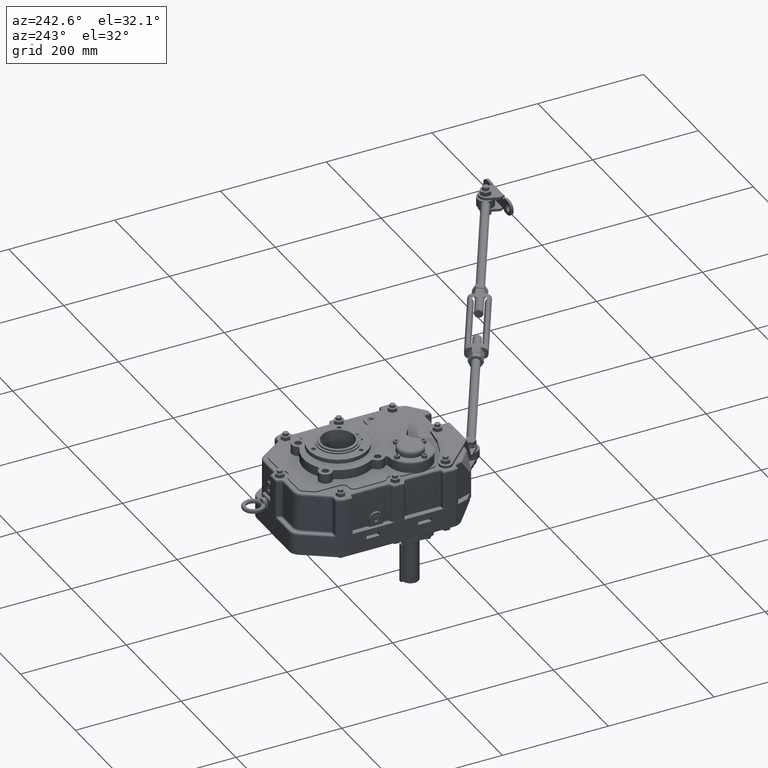
[diagram: clean part render]
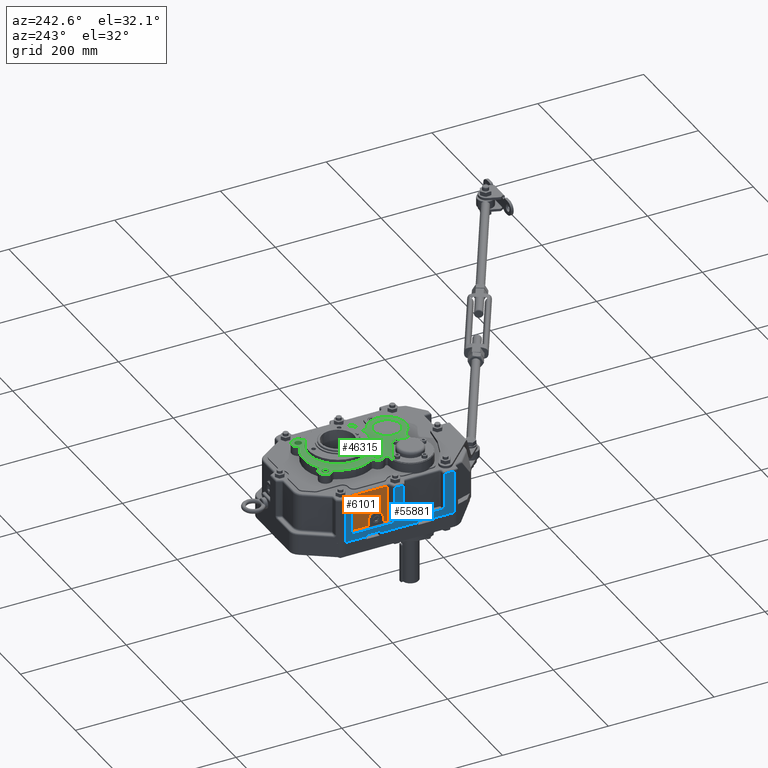
[diagram: same view with three faces highlighted in distinct colors, each labeled with its STEP entity id]
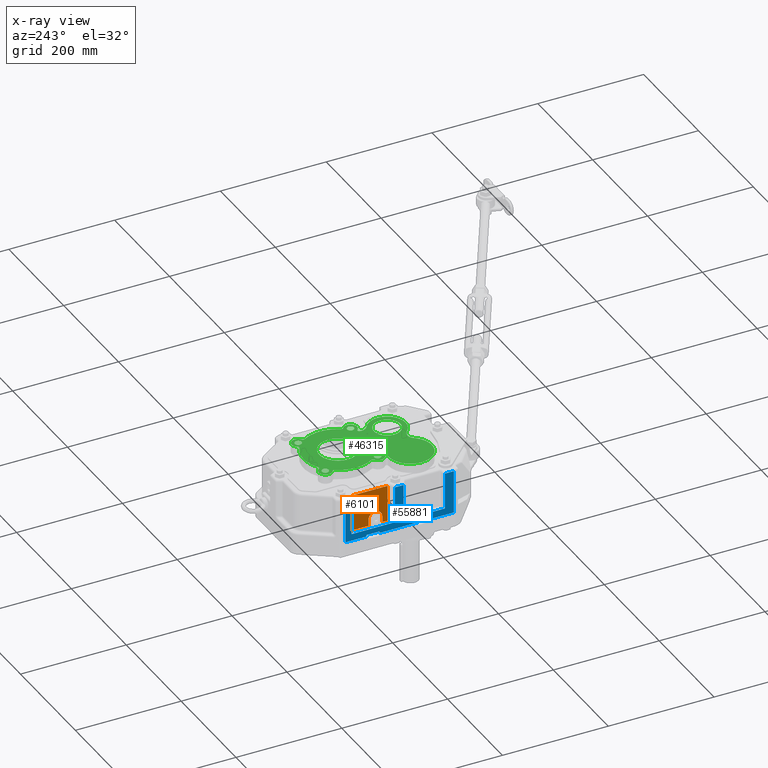
[diagram: x-ray of the same camera — body ghosted, the three highlighted faces saturated]
A machine part, auxiliary view with three faces highlighted in distinct colors.
The next image is the same camera in x-ray (body ghosted, the three faces saturated) — at least one of them is partly hidden behind the body in this view.
Their STEP definitions:

[orange] entity #6101 — the highlighted planar face has unit normal (-1, 0, 0).
#983 = EDGE_CURVE ( 'NONE', #34819, #47341, #10930, .T. ) ;
#1178 = DIRECTION ( 'NONE',  ( 1.000000000000000000, -1.682156097916904300E-016, -0.0000000000000000000 ) ) ;
#2093 = EDGE_CURVE ( 'NONE', #20894, #34819, #54463, .T. ) ;
#2431 = VECTOR ( 'NONE', #3463, 39.37007874015748100 ) ;
#2636 = EDGE_CURVE ( 'NONE', #17154, #53588, #4139, .T. ) ;
#3463 = DIRECTION ( 'NONE',  ( 1.682156097916904300E-016, 1.000000000000000000, -0.0000000000000000000 ) ) ;
#4139 = LINE ( 'NONE', #38166, #38982 ) ;
#5546 = EDGE_CURVE ( 'NONE', #47341, #17154, #16597, .T. ) ;
#6101 = ADVANCED_FACE ( 'NONE', ( #26676 ), #45057, .T. ) ;
#8141 = DIRECTION ( 'NONE',  ( 0.0000000000000000000, -1.445602896647340100E-016, 1.000000000000000000 ) ) ;
#8370 = VERTEX_POINT ( 'NONE', #48091 ) ;
#8974 = EDGE_CURVE ( 'NONE', #13146, #20894, #36937, .T. ) ;
#9086 = ORIENTED_EDGE ( 'NONE', *, *, #5546, .T. ) ;
#9384 = CARTESIAN_POINT ( 'NONE',  ( -4.232283464566929600, 4.842519685039370400, 0.5118110236220476700 ) ) ;
#9564 = VECTOR ( 'NONE', #8141, 39.37007874015748100 ) ;
#10156 = VECTOR ( 'NONE', #39787, 39.37007874015748100 ) ;
#10930 = LINE ( 'NONE', #34262, #9564 ) ;
#11837 = DIRECTION ( 'NONE',  ( 0.0000000000000000000, -0.0000000000000000000, 1.000000000000000000 ) ) ;
#12156 = LINE ( 'NONE', #20361, #45631 ) ;
#13146 = VERTEX_POINT ( 'NONE', #29854 ) ;
#16597 = CIRCLE ( 'NONE', #20434, 0.5118110236220472200 ) ;
#16979 = ORIENTED_EDGE ( 'NONE', *, *, #2636, .T. ) ;
#17125 = DIRECTION ( 'NONE',  ( -0.0000000000000000000, -0.0000000000000000000, -1.000000000000000000 ) ) ;
#17154 = VERTEX_POINT ( 'NONE', #33853 ) ;
#18808 = DIRECTION ( 'NONE',  ( -1.682156097916904300E-016, -1.000000000000000000, 0.0000000000000000000 ) ) ;
#20361 = CARTESIAN_POINT ( 'NONE',  ( -4.232283464566930500, -1.501807375876990100, 3.346456692913382500 ) ) ;
#20434 = AXIS2_PLACEMENT_3D ( 'NONE', #27254, #1178, #31676 ) ;
#20894 = VERTEX_POINT ( 'NONE', #49505 ) ;
#21304 = CARTESIAN_POINT ( 'NONE',  ( -4.232283464566930500, 1.141732283464567300, -12.48627875529069300 ) ) ;
#21782 = ORIENTED_EDGE ( 'NONE', *, *, #31863, .T. ) ;
#22435 = CARTESIAN_POINT ( 'NONE',  ( -4.232283464566929600, 4.842519685039370400, -12.48627875529069300 ) ) ;
#24381 = DIRECTION ( 'NONE',  ( -1.682156097916904300E-016, -1.000000000000000000, 0.0000000000000000000 ) ) ;
#24904 = DIRECTION ( 'NONE',  ( 0.0000000000000000000, 0.0000000000000000000, -1.000000000000000000 ) ) ;
#25134 = CARTESIAN_POINT ( 'NONE',  ( -4.232283464566930500, -0.07874015748031425200, 0.9842519685039379200 ) ) ;
#25248 = VECTOR ( 'NONE', #17125, 39.37007874015748100 ) ;
#25598 = LINE ( 'NONE', #42875, #2431 ) ;
#25748 = ORIENTED_EDGE ( 'NONE', *, *, #2093, .T. ) ;
#26213 = EDGE_CURVE ( 'NONE', #28170, #13146, #25598, .T. ) ;
#26676 = FACE_OUTER_BOUND ( 'NONE', #50878, .T. ) ;
#27254 = CARTESIAN_POINT ( 'NONE',  ( -4.232283464566930500, -0.5905511811023614900, 0.9842519685039372600 ) ) ;
#28170 = VERTEX_POINT ( 'NONE', #34611 ) ;
#29751 = VECTOR ( 'NONE', #24381, 39.37007874015748100 ) ;
#29854 = CARTESIAN_POINT ( 'NONE',  ( -4.232283464566930500, 1.141732283464567300, 3.228346456692914300 ) ) ;
#30314 = ORIENTED_EDGE ( 'NONE', *, *, #8974, .T. ) ;
#31248 = DIRECTION ( 'NONE',  ( -1.000000000000000000, 1.682156097916904300E-016, 0.0000000000000000000 ) ) ;
#31676 = DIRECTION ( 'NONE',  ( 0.0000000000000000000, 1.000000000000000000, 0.0000000000000000000 ) ) ;
#31863 = EDGE_CURVE ( 'NONE', #53588, #8370, #43677, .T. ) ;
#33627 = CARTESIAN_POINT ( 'NONE',  ( -4.232283464566930500, -1.102362204724408400, 0.5118110236220476700 ) ) ;
#33853 = CARTESIAN_POINT ( 'NONE',  ( -4.232283464566930500, -1.102362204724408800, 0.9842519685039372600 ) ) ;
#34262 = CARTESIAN_POINT ( 'NONE',  ( -4.232283464566930500, -0.07874015748031418200, 0.5118110236220476700 ) ) ;
#34611 = CARTESIAN_POINT ( 'NONE',  ( -4.232283464566930500, -1.501807375876990100, 3.228346456692913400 ) ) ;
#34786 = AXIS2_PLACEMENT_3D ( 'NONE', #22435, #31248, #18808 ) ;
#34819 = VERTEX_POINT ( 'NONE', #43951 ) ;
#36937 = LINE ( 'NONE', #21304, #25248 ) ;
#37180 = EDGE_CURVE ( 'NONE', #8370, #28170, #12156, .T. ) ;
#38166 = CARTESIAN_POINT ( 'NONE',  ( -4.232283464566930500, -1.102362204724408600, 0.9842519685039372600 ) ) ;
#38982 = VECTOR ( 'NONE', #24904, 39.37007874015748100 ) ;
#39787 = DIRECTION ( 'NONE',  ( -1.682156097916904300E-016, -1.000000000000000000, 0.0000000000000000000 ) ) ;
#42569 = ORIENTED_EDGE ( 'NONE', *, *, #26213, .T. ) ;
#42875 = CARTESIAN_POINT ( 'NONE',  ( -4.232283464566929600, 4.842519685039370400, 3.228346456692914300 ) ) ;
#43677 = LINE ( 'NONE', #9384, #10156 ) ;
#43951 = CARTESIAN_POINT ( 'NONE',  ( -4.232283464566930500, -0.07874015748031418200, 0.5118110236220476700 ) ) ;
#45057 = PLANE ( 'NONE',  #34786 ) ;
#45631 = VECTOR ( 'NONE', #11837, 39.37007874015748100 ) ;
#46710 = ORIENTED_EDGE ( 'NONE', *, *, #37180, .T. ) ;
#47341 = VERTEX_POINT ( 'NONE', #25134 ) ;
#47541 = ORIENTED_EDGE ( 'NONE', *, *, #983, .T. ) ;
#48091 = CARTESIAN_POINT ( 'NONE',  ( -4.232283464566930500, -1.501807375876990100, 0.5118110236220476700 ) ) ;
#49505 = CARTESIAN_POINT ( 'NONE',  ( -4.232283464566930500, 1.141732283464567300, 0.5118110236220476700 ) ) ;
#50635 = CARTESIAN_POINT ( 'NONE',  ( -4.232283464566929600, 4.842519685039370400, 0.5118110236220476700 ) ) ;
#50878 = EDGE_LOOP ( 'NONE', ( #46710, #42569, #30314, #25748, #47541, #9086, #16979, #21782 ) ) ;
#53588 = VERTEX_POINT ( 'NONE', #33627 ) ;
#54463 = LINE ( 'NONE', #50635, #29751 ) ;

[blue] entity #55881 — the highlighted planar face has unit normal (1, 0, 0).
#283 = ORIENTED_EDGE ( 'NONE', *, *, #12304, .T. ) ;
#599 = LINE ( 'NONE', #621, #12238 ) ;
#621 = CARTESIAN_POINT ( 'NONE',  ( -4.625984251968502800, -8.149606299212599900, 0.0000000000000000000 ) ) ;
#1198 = ORIENTED_EDGE ( 'NONE', *, *, #3523, .T. ) ;
#1514 = CARTESIAN_POINT ( 'NONE',  ( -4.625984251968502800, -8.149606299212599900, 0.0000000000000000000 ) ) ;
#1604 = VECTOR ( 'NONE', #36977, 39.37007874015748100 ) ;
#2523 = DIRECTION ( 'NONE',  ( -0.0000000000000000000, 0.0000000000000000000, 1.000000000000000000 ) ) ;
#3082 = VERTEX_POINT ( 'NONE', #18038 ) ;
#3523 = EDGE_CURVE ( 'NONE', #43847, #26045, #599, .T. ) ;
#3799 = VECTOR ( 'NONE', #11265, 39.37007874015748100 ) ;
#3815 = CARTESIAN_POINT ( 'NONE',  ( -4.625984251968504600, -5.551181102362205500, 0.5118110236220476700 ) ) ;
#4030 = VECTOR ( 'NONE', #40805, 39.37007874015748100 ) ;
#4270 = VERTEX_POINT ( 'NONE', #39543 ) ;
#4558 = VERTEX_POINT ( 'NONE', #45776 ) ;
#5518 = VECTOR ( 'NONE', #10306, 39.37007874015748100 ) ;
#5823 = VECTOR ( 'NONE', #2523, 39.37007874015748100 ) ;
#5827 = LINE ( 'NONE', #36318, #39325 ) ;
#6133 = ORIENTED_EDGE ( 'NONE', *, *, #52638, .T. ) ;
#6414 = ORIENTED_EDGE ( 'NONE', *, *, #43756, .T. ) ;
#6419 = DIRECTION ( 'NONE',  ( -0.0000000000000000000, 1.000000000000000000, -0.0000000000000000000 ) ) ;
#7085 = PLANE ( 'NONE',  #41323 ) ;
#7588 = VECTOR ( 'NONE', #38573, 39.37007874015748100 ) ;
#7768 = VERTEX_POINT ( 'NONE', #8249 ) ;
#8249 = CARTESIAN_POINT ( 'NONE',  ( -4.625984251968502800, 1.845104029052865100, 0.0000000000000000000 ) ) ;
#8310 = DIRECTION ( 'NONE',  ( 0.0000000000000000000, -0.0000000000000000000, -1.000000000000000000 ) ) ;
#8411 = CARTESIAN_POINT ( 'NONE',  ( -4.625984251968504600, -2.486058904810003700, 0.5118110236220476700 ) ) ;
#8928 = VERTEX_POINT ( 'NONE', #3815 ) ;
#8947 = DIRECTION ( 'NONE',  ( -0.0000000000000000000, -1.000000000000000000, -0.0000000000000000000 ) ) ;
#9060 = DIRECTION ( 'NONE',  ( -0.0000000000000000000, -1.000000000000000000, -0.0000000000000000000 ) ) ;
#9773 = CARTESIAN_POINT ( 'NONE',  ( -4.625984251968502800, -4.566929133858268500, -0.1968503937007868000 ) ) ;
#9912 = VECTOR ( 'NONE', #14136, 39.37007874015748100 ) ;
#10234 = CARTESIAN_POINT ( 'NONE',  ( -4.625984251968502800, 0.2755905511811015400, -0.1968503937007874400 ) ) ;
#10306 = DIRECTION ( 'NONE',  ( -0.0000000000000000000, -1.000000000000000000, -0.0000000000000000000 ) ) ;
#10512 = LINE ( 'NONE', #32481, #11888 ) ;
#11265 = DIRECTION ( 'NONE',  ( -0.0000000000000000000, 0.0000000000000000000, 1.000000000000000000 ) ) ;
#11317 = EDGE_CURVE ( 'NONE', #36715, #47489, #48114, .T. ) ;
#11629 = CARTESIAN_POINT ( 'NONE',  ( -4.625984251968504600, 4.842519685039370400, 0.5118110236220476700 ) ) ;
#11888 = VECTOR ( 'NONE', #6419, 39.37007874015748100 ) ;
#12238 = VECTOR ( 'NONE', #9060, 39.37007874015748100 ) ;
#12304 = EDGE_CURVE ( 'NONE', #4270, #55183, #36264, .T. ) ;
#12489 = CARTESIAN_POINT ( 'NONE',  ( -4.625984251968502800, -6.235621705654092600, 3.346456692913386100 ) ) ;
#12715 = CARTESIAN_POINT ( 'NONE',  ( -4.625984251968502800, 0.2755905511811015400, 0.1181102362204724100 ) ) ;
#13422 = DIRECTION ( 'NONE',  ( -0.0000000000000000000, 1.000000000000000000, -1.040834085586084400E-016 ) ) ;
#14136 = DIRECTION ( 'NONE',  ( 0.0000000000000000000, 0.0000000000000000000, 1.000000000000000000 ) ) ;
#14796 = VECTOR ( 'NONE', #49658, 39.37007874015748100 ) ;
#15356 = LINE ( 'NONE', #28385, #3799 ) ;
#15579 = LINE ( 'NONE', #10234, #4030 ) ;
#15813 = LINE ( 'NONE', #26235, #37711 ) ;
#16050 = CARTESIAN_POINT ( 'NONE',  ( -4.625984251968502800, 0.2755905511811015400, 0.0000000000000000000 ) ) ;
#16306 = CARTESIAN_POINT ( 'NONE',  ( -4.625984251968502800, -0.7086614173228356100, -0.1968503937007872700 ) ) ;
#16864 = CARTESIAN_POINT ( 'NONE',  ( -4.625984251968502800, -5.551181102362205500, 0.5118110236220476700 ) ) ;
#16981 = DIRECTION ( 'NONE',  ( 1.000000000000000000, 0.0000000000000000000, 0.0000000000000000000 ) ) ;
#18038 = CARTESIAN_POINT ( 'NONE',  ( -4.625984251968504600, -1.844649756607317900, 0.5118110236220476700 ) ) ;
#18726 = LINE ( 'NONE', #9773, #9912 ) ;
#19705 = ORIENTED_EDGE ( 'NONE', *, *, #25806, .F. ) ;
#20024 = CARTESIAN_POINT ( 'NONE',  ( -4.625984251968502800, -5.551181102362205500, 3.228346456692913400 ) ) ;
#20804 = EDGE_CURVE ( 'NONE', #43847, #4558, #18726, .T. ) ;
#20887 = EDGE_CURVE ( 'NONE', #47489, #7768, #5827, .T. ) ;
#21946 = CARTESIAN_POINT ( 'NONE',  ( -4.625984251968502800, -3.582677165354331900, 0.1181102362204729000 ) ) ;
#22213 = VECTOR ( 'NONE', #42617, 39.37007874015748100 ) ;
#22726 = EDGE_CURVE ( 'NONE', #42937, #3082, #36296, .T. ) ;
#23045 = DIRECTION ( 'NONE',  ( 0.0000000000000000000, -0.0000000000000000000, -1.000000000000000000 ) ) ;
#24180 = VERTEX_POINT ( 'NONE', #20024 ) ;
#24206 = VECTOR ( 'NONE', #13422, 39.37007874015748100 ) ;
#24365 = ORIENTED_EDGE ( 'NONE', *, *, #20887, .T. ) ;
#24795 = EDGE_CURVE ( 'NONE', #8928, #47445, #56617, .T. ) ;
#24901 = ORIENTED_EDGE ( 'NONE', *, *, #42959, .T. ) ;
#25042 = DIRECTION ( 'NONE',  ( 0.0000000000000000000, 0.0000000000000000000, 1.000000000000000000 ) ) ;
#25111 = VECTOR ( 'NONE', #25580, 39.37007874015748100 ) ;
#25310 = EDGE_LOOP ( 'NONE', ( #24901, #6414, #40149, #40719, #34031, #56687, #38156, #42670, #6133, #32799, #24365, #26965, #45982, #34497, #45299, #283, #37252, #19705, #45090, #1198 ) ) ;
#25428 = VERTEX_POINT ( 'NONE', #36778 ) ;
#25580 = DIRECTION ( 'NONE',  ( 0.0000000000000000000, 0.0000000000000000000, 1.000000000000000000 ) ) ;
#25585 = LINE ( 'NONE', #21946, #24206 ) ;
#25806 = EDGE_CURVE ( 'NONE', #4558, #49270, #25585, .T. ) ;
#26045 = VERTEX_POINT ( 'NONE', #37090 ) ;
#26235 = CARTESIAN_POINT ( 'NONE',  ( -4.625984251968502800, -8.149606299212599900, 0.0000000000000000000 ) ) ;
#26965 = ORIENTED_EDGE ( 'NONE', *, *, #39816, .T. ) ;
#27158 = CARTESIAN_POINT ( 'NONE',  ( -4.625984251968502800, 1.845104029052865300, 3.228346456692913400 ) ) ;
#28196 = VERTEX_POINT ( 'NONE', #39238 ) ;
#28322 = CARTESIAN_POINT ( 'NONE',  ( -4.625984251968502800, -3.582677165354331900, 0.1181102362204729000 ) ) ;
#28385 = CARTESIAN_POINT ( 'NONE',  ( -4.625984251968502800, 1.377952755905512000, 3.346456692913386100 ) ) ;
#28755 = FACE_OUTER_BOUND ( 'NONE', #25310, .T. ) ;
#30850 = EDGE_CURVE ( 'NONE', #49270, #55183, #42477, .T. ) ;
#31685 = CARTESIAN_POINT ( 'NONE',  ( -4.625984251968504600, 1.377952755905512000, 0.5118110236220476700 ) ) ;
#32481 = CARTESIAN_POINT ( 'NONE',  ( -4.625984251968502800, -1.844649756607317900, 3.228346456692913400 ) ) ;
#32799 = ORIENTED_EDGE ( 'NONE', *, *, #11317, .T. ) ;
#33026 = CARTESIAN_POINT ( 'NONE',  ( -4.625984251968502800, -2.486058904810003700, 3.346456692913386100 ) ) ;
#33265 = VECTOR ( 'NONE', #37789, 39.37007874015748100 ) ;
#33900 = LINE ( 'NONE', #16864, #55856 ) ;
#34031 = ORIENTED_EDGE ( 'NONE', *, *, #38231, .T. ) ;
#34360 = EDGE_CURVE ( 'NONE', #41575, #28196, #52630, .T. ) ;
#34378 = CARTESIAN_POINT ( 'NONE',  ( -4.625984251968502800, -8.149606299212599900, 3.346456692913386100 ) ) ;
#34497 = ORIENTED_EDGE ( 'NONE', *, *, #34360, .F. ) ;
#34906 = VECTOR ( 'NONE', #50458, 39.37007874015748100 ) ;
#35436 = LINE ( 'NONE', #12489, #25111 ) ;
#35754 = EDGE_CURVE ( 'NONE', #24180, #8928, #33900, .T. ) ;
#36264 = LINE ( 'NONE', #1514, #5518 ) ;
#36296 = LINE ( 'NONE', #46052, #34906 ) ;
#36318 = CARTESIAN_POINT ( 'NONE',  ( -4.625984251968502800, 1.845104029052865300, 0.0000000000000000000 ) ) ;
#36694 = LINE ( 'NONE', #45249, #14796 ) ;
#36715 = VERTEX_POINT ( 'NONE', #54475 ) ;
#36778 = CARTESIAN_POINT ( 'NONE',  ( -4.625984251968502800, -6.235621705654092600, 3.228346456692913400 ) ) ;
#36865 = VECTOR ( 'NONE', #25042, 39.37007874015748100 ) ;
#36977 = DIRECTION ( 'NONE',  ( -0.0000000000000000000, 1.000000000000000000, 0.0000000000000000000 ) ) ;
#37090 = CARTESIAN_POINT ( 'NONE',  ( -4.625984251968502800, -6.235621705654092600, 0.0000000000000000000 ) ) ;
#37252 = ORIENTED_EDGE ( 'NONE', *, *, #30850, .F. ) ;
#37711 = VECTOR ( 'NONE', #8947, 39.37007874015748100 ) ;
#37789 = DIRECTION ( 'NONE',  ( 0.0000000000000000000, 1.000000000000000000, 0.0000000000000000000 ) ) ;
#38156 = ORIENTED_EDGE ( 'NONE', *, *, #22726, .T. ) ;
#38231 = EDGE_CURVE ( 'NONE', #47445, #52081, #50940, .T. ) ;
#38357 = CARTESIAN_POINT ( 'NONE',  ( -4.625984251968504600, 4.842519685039370400, 0.5118110236220476700 ) ) ;
#38573 = DIRECTION ( 'NONE',  ( -0.0000000000000000000, -0.0000000000000000000, -1.000000000000000000 ) ) ;
#38685 = CARTESIAN_POINT ( 'NONE',  ( -4.625984251968502800, -0.7086614173228356100, 0.1181102362204725100 ) ) ;
#38874 = DIRECTION ( 'NONE',  ( -0.0000000000000000000, 1.000000000000000000, -1.040834085586084300E-016 ) ) ;
#39238 = CARTESIAN_POINT ( 'NONE',  ( -4.625984251968502800, 0.2755905511811015400, 0.1181102362204724100 ) ) ;
#39325 = VECTOR ( 'NONE', #23045, 39.37007874015748100 ) ;
#39543 = CARTESIAN_POINT ( 'NONE',  ( -4.625984251968502800, -0.7086614173228356100, 0.0000000000000000000 ) ) ;
#39816 = EDGE_CURVE ( 'NONE', #7768, #40517, #15813, .T. ) ;
#40149 = ORIENTED_EDGE ( 'NONE', *, *, #35754, .T. ) ;
#40517 = VERTEX_POINT ( 'NONE', #16050 ) ;
#40719 = ORIENTED_EDGE ( 'NONE', *, *, #24795, .T. ) ;
#40805 = DIRECTION ( 'NONE',  ( -0.0000000000000000000, -0.0000000000000000000, -1.000000000000000000 ) ) ;
#41254 = CARTESIAN_POINT ( 'NONE',  ( -4.625984251968502800, -4.566929133858268500, 0.0000000000000000000 ) ) ;
#41323 = AXIS2_PLACEMENT_3D ( 'NONE', #34378, #16981, #47589 ) ;
#41575 = VERTEX_POINT ( 'NONE', #38685 ) ;
#42477 = LINE ( 'NONE', #51798, #7588 ) ;
#42527 = CARTESIAN_POINT ( 'NONE',  ( -4.625984251968502800, -3.582677165354331900, 0.0000000000000000000 ) ) ;
#42617 = DIRECTION ( 'NONE',  ( 0.0000000000000000000, 1.000000000000000000, 0.0000000000000000000 ) ) ;
#42670 = ORIENTED_EDGE ( 'NONE', *, *, #43990, .T. ) ;
#42921 = CARTESIAN_POINT ( 'NONE',  ( -4.625984251968502800, -1.844649756607317900, 3.228346456692913400 ) ) ;
#42937 = VERTEX_POINT ( 'NONE', #42921 ) ;
#42959 = EDGE_CURVE ( 'NONE', #26045, #25428, #35436, .T. ) ;
#43123 = VERTEX_POINT ( 'NONE', #31685 ) ;
#43756 = EDGE_CURVE ( 'NONE', #25428, #24180, #36694, .T. ) ;
#43847 = VERTEX_POINT ( 'NONE', #41254 ) ;
#43990 = EDGE_CURVE ( 'NONE', #3082, #43123, #46900, .T. ) ;
#44922 = EDGE_CURVE ( 'NONE', #52081, #42937, #10512, .T. ) ;
#45090 = ORIENTED_EDGE ( 'NONE', *, *, #20804, .F. ) ;
#45249 = CARTESIAN_POINT ( 'NONE',  ( -4.625984251968502800, -5.551181102362205500, 3.228346456692913400 ) ) ;
#45299 = ORIENTED_EDGE ( 'NONE', *, *, #50633, .F. ) ;
#45776 = CARTESIAN_POINT ( 'NONE',  ( -4.625984251968502800, -4.566929133858268500, 0.1181102362204729900 ) ) ;
#45982 = ORIENTED_EDGE ( 'NONE', *, *, #46474, .F. ) ;
#46052 = CARTESIAN_POINT ( 'NONE',  ( -4.625984251968502800, -1.844649756607317900, 0.5118110236220476700 ) ) ;
#46474 = EDGE_CURVE ( 'NONE', #28196, #40517, #15579, .T. ) ;
#46900 = LINE ( 'NONE', #38357, #22213 ) ;
#47445 = VERTEX_POINT ( 'NONE', #8411 ) ;
#47489 = VERTEX_POINT ( 'NONE', #27158 ) ;
#47589 = DIRECTION ( 'NONE',  ( 0.0000000000000000000, 0.0000000000000000000, -1.000000000000000000 ) ) ;
#48114 = LINE ( 'NONE', #54428, #1604 ) ;
#49270 = VERTEX_POINT ( 'NONE', #28322 ) ;
#49658 = DIRECTION ( 'NONE',  ( -0.0000000000000000000, 1.000000000000000000, 0.0000000000000000000 ) ) ;
#50458 = DIRECTION ( 'NONE',  ( 0.0000000000000000000, -0.0000000000000000000, -1.000000000000000000 ) ) ;
#50633 = EDGE_CURVE ( 'NONE', #4270, #41575, #51275, .T. ) ;
#50940 = LINE ( 'NONE', #33026, #5823 ) ;
#51275 = LINE ( 'NONE', #16306, #36865 ) ;
#51798 = CARTESIAN_POINT ( 'NONE',  ( -4.625984251968502800, -3.582677165354331900, -0.1968503937007869700 ) ) ;
#52081 = VERTEX_POINT ( 'NONE', #55163 ) ;
#52630 = LINE ( 'NONE', #12715, #53984 ) ;
#52638 = EDGE_CURVE ( 'NONE', #43123, #36715, #15356, .T. ) ;
#53984 = VECTOR ( 'NONE', #38874, 39.37007874015748100 ) ;
#54428 = CARTESIAN_POINT ( 'NONE',  ( -4.625984251968502800, 1.845104029052865100, 3.228346456692913400 ) ) ;
#54475 = CARTESIAN_POINT ( 'NONE',  ( -4.625984251968502800, 1.377952755905512000, 3.228346456692913400 ) ) ;
#55163 = CARTESIAN_POINT ( 'NONE',  ( -4.625984251968502800, -2.486058904810003700, 3.228346456692913400 ) ) ;
#55183 = VERTEX_POINT ( 'NONE', #42527 ) ;
#55856 = VECTOR ( 'NONE', #8310, 39.37007874015748100 ) ;
#55881 = ADVANCED_FACE ( 'NONE', ( #28755 ), #7085, .F. ) ;
#56617 = LINE ( 'NONE', #11629, #33265 ) ;
#56687 = ORIENTED_EDGE ( 'NONE', *, *, #44922, .T. ) ;

[green] entity #46315 — the highlighted planar face has unit normal (0, 0, 1).
#30 = EDGE_LOOP ( 'NONE', ( #55646, #9388 ) ) ;
#44 = EDGE_CURVE ( 'NONE', #56375, #50625, #4887, .T. ) ;
#134 = DIRECTION ( 'NONE',  ( 1.000000000000000000, 0.0000000000000000000, 0.0000000000000000000 ) ) ;
#604 = EDGE_CURVE ( 'NONE', #42088, #33923, #34853, .T. ) ;
#654 = CIRCLE ( 'NONE', #36130, 0.2500000000000000600 ) ;
#732 = DIRECTION ( 'NONE',  ( 1.000000000000000000, 0.0000000000000000000, 0.0000000000000000000 ) ) ;
#1016 = CARTESIAN_POINT ( 'NONE',  ( 1.527938016229698500, 2.203927131812397600, 4.133858267716536100 ) ) ;
#1069 = CIRCLE ( 'NONE', #7786, 1.614173228346456700 ) ;
#1163 = DIRECTION ( 'NONE',  ( 1.000000000000000000, 0.0000000000000000000, 0.0000000000000000000 ) ) ;
#1188 = DIRECTION ( 'NONE',  ( 1.000000000000000000, 0.0000000000000000000, 0.0000000000000000000 ) ) ;
#1345 = CARTESIAN_POINT ( 'NONE',  ( -0.1509532160027461900, -5.031851016169216700, 4.133858267716536100 ) ) ;
#1794 = VERTEX_POINT ( 'NONE', #4322 ) ;
#1938 = VERTEX_POINT ( 'NONE', #1016 ) ;
#2167 = DIRECTION ( 'NONE',  ( 1.000000000000000000, 0.0000000000000000000, 0.0000000000000000000 ) ) ;
#2303 = DIRECTION ( 'NONE',  ( 1.000000000000000000, 0.0000000000000000000, 0.0000000000000000000 ) ) ;
#2387 = DIRECTION ( 'NONE',  ( 1.000000000000000000, 0.0000000000000000000, 0.0000000000000000000 ) ) ;
#2516 = CARTESIAN_POINT ( 'NONE',  ( 0.0000000000000000000, 0.0000000000000000000, 4.133858267716536100 ) ) ;
#2666 = VERTEX_POINT ( 'NONE', #25091 ) ;
#2800 = CARTESIAN_POINT ( 'NONE',  ( 1.496383692640245000, -2.358329758944051100, 4.133858267716536100 ) ) ;
#2868 = DIRECTION ( 'NONE',  ( 1.000000000000000000, -4.625929269271481400E-015, 0.0000000000000000000 ) ) ;
#2883 = AXIS2_PLACEMENT_3D ( 'NONE', #32024, #5958, #36509 ) ;
#2937 = VERTEX_POINT ( 'NONE', #39328 ) ;
#3679 = VERTEX_POINT ( 'NONE', #18883 ) ;
#3713 = EDGE_CURVE ( 'NONE', #10793, #50615, #40922, .T. ) ;
#3745 = EDGE_CURVE ( 'NONE', #50758, #28850, #6063, .T. ) ;
#4022 = AXIS2_PLACEMENT_3D ( 'NONE', #22674, #53371, #27042 ) ;
#4063 = VERTEX_POINT ( 'NONE', #55434 ) ;
#4141 = EDGE_CURVE ( 'NONE', #49650, #21840, #51814, .T. ) ;
#4217 = EDGE_CURVE ( 'NONE', #22330, #45306, #5275, .T. ) ;
#4322 = CARTESIAN_POINT ( 'NONE',  ( -2.203927131812397600, 1.527938016229698900, 4.133858267716536100 ) ) ;
#4357 = PLANE ( 'NONE',  #9738 ) ;
#4572 = CARTESIAN_POINT ( 'NONE',  ( 2.147066733056270900, 1.426950465954196300, 4.133858267716536100 ) ) ;
#4582 = CARTESIAN_POINT ( 'NONE',  ( -1.948719475710957800, -1.948719475710958300, 4.133858267716536100 ) ) ;
#4586 = EDGE_CURVE ( 'NONE', #28850, #29874, #35300, .T. ) ;
#4706 = CARTESIAN_POINT ( 'NONE',  ( 0.0000000000000000000, 0.0000000000000000000, 4.133858267716536100 ) ) ;
#4887 = CIRCLE ( 'NONE', #4022, 2.559055118110236600 ) ;
#5017 = EDGE_CURVE ( 'NONE', #4063, #10793, #10590, .T. ) ;
#5040 = AXIS2_PLACEMENT_3D ( 'NONE', #52027, #25727, #56408 ) ;
#5051 = VERTEX_POINT ( 'NONE', #41919 ) ;
#5275 = CIRCLE ( 'NONE', #54853, 0.4921259842519684100 ) ;
#5533 = CARTESIAN_POINT ( 'NONE',  ( 2.265176969276743600, 1.426950465954196300, 4.133858267716536100 ) ) ;
#5625 = CARTESIAN_POINT ( 'NONE',  ( 1.426950465954196300, 2.265176969276743600, 4.133858267716536100 ) ) ;
#5707 = EDGE_CURVE ( 'NONE', #31753, #10226, #49408, .T. ) ;
#5771 = EDGE_CURVE ( 'NONE', #30540, #37333, #7711, .T. ) ;
#5958 = DIRECTION ( 'NONE',  ( 0.0000000000000000000, 0.0000000000000000000, 1.000000000000000000 ) ) ;
#6063 = CIRCLE ( 'NONE', #7200, 0.5905511811023621500 ) ;
#6068 = CARTESIAN_POINT ( 'NONE',  ( 1.948719475710957800, -1.948719475710958300, 4.133858267716536100 ) ) ;
#6084 = VERTEX_POINT ( 'NONE', #13703 ) ;
#6218 = AXIS2_PLACEMENT_3D ( 'NONE', #50302, #24040, #54749 ) ;
#6301 = CARTESIAN_POINT ( 'NONE',  ( -2.147066733056271400, 1.426950465954196100, 4.133858267716536100 ) ) ;
#6352 = VERTEX_POINT ( 'NONE', #18222 ) ;
#6552 = AXIS2_PLACEMENT_3D ( 'NONE', #2800, #33291, #7202 ) ;
#6558 = CARTESIAN_POINT ( 'NONE',  ( 1.955694570897049900, -2.468937007874016000, 4.133858267716536100 ) ) ;
#6603 = AXIS2_PLACEMENT_3D ( 'NONE', #49617, #23324, #54050 ) ;
#6775 = ORIENTED_EDGE ( 'NONE', *, *, #5017, .T. ) ;
#6781 = CARTESIAN_POINT ( 'NONE',  ( 1.387795275590551400, 0.0000000000000000000, 4.133858267716536100 ) ) ;
#6926 = DIRECTION ( 'NONE',  ( 1.000000000000000000, 0.0000000000000000000, 0.0000000000000000000 ) ) ;
#7040 = CARTESIAN_POINT ( 'NONE',  ( -2.559055118110236600, 0.0000000000000000000, 4.133858267716536100 ) ) ;
#7198 = VERTEX_POINT ( 'NONE', #51865 ) ;
#7200 = AXIS2_PLACEMENT_3D ( 'NONE', #6558, #37096, #10925 ) ;
#7202 = DIRECTION ( 'NONE',  ( 1.000000000000000000, -2.312964634635740700E-015, 0.0000000000000000000 ) ) ;
#7225 = CARTESIAN_POINT ( 'NONE',  ( -1.948719475710957800, -1.948719475710958300, 4.133858267716536100 ) ) ;
#7280 = CARTESIAN_POINT ( 'NONE',  ( 2.265176969276743600, 1.426950465954196300, 4.133858267716536100 ) ) ;
#7439 = VECTOR ( 'NONE', #19264, 39.37007874015748900 ) ;
#7468 = ORIENTED_EDGE ( 'NONE', *, *, #5771, .T. ) ;
#7711 = CIRCLE ( 'NONE', #39949, 0.1181102362204725500 ) ;
#7712 = AXIS2_PLACEMENT_3D ( 'NONE', #54707, #28405, #2303 ) ;
#7786 = AXIS2_PLACEMENT_3D ( 'NONE', #52537, #26220, #134 ) ;
#8797 = ORIENTED_EDGE ( 'NONE', *, *, #37118, .F. ) ;
#8858 = AXIS2_PLACEMENT_3D ( 'NONE', #51563, #25244, #55928 ) ;
#8932 = CARTESIAN_POINT ( 'NONE',  ( -2.265176969276743600, 1.426950465954196100, 4.133858267716536100 ) ) ;
#8945 = DIRECTION ( 'NONE',  ( 0.7547095802227760100, -0.6560590289905026100, 0.0000000000000000000 ) ) ;
#8973 = DIRECTION ( 'NONE',  ( 1.000000000000000000, 0.0000000000000000000, 0.0000000000000000000 ) ) ;
#9043 = CARTESIAN_POINT ( 'NONE',  ( 2.165242691220416100, -1.363996768926805500, 4.133858267716536100 ) ) ;
#9076 = EDGE_CURVE ( 'NONE', #38788, #34481, #47159, .T. ) ;
#9105 = AXIS2_PLACEMENT_3D ( 'NONE', #37642, #11473, #42068 ) ;
#9106 = DIRECTION ( 'NONE',  ( 1.000000000000000000, 0.0000000000000000000, 0.0000000000000000000 ) ) ;
#9388 = ORIENTED_EDGE ( 'NONE', *, *, #33763, .F. ) ;
#9738 = AXIS2_PLACEMENT_3D ( 'NONE', #30443, #13120, #43707 ) ;
#9913 = DIRECTION ( 'NONE',  ( 1.000000000000000000, 2.312964634635740700E-015, 0.0000000000000000000 ) ) ;
#9994 = DIRECTION ( 'NONE',  ( 1.000000000000000000, 2.312964634635740700E-015, 0.0000000000000000000 ) ) ;
#10029 = EDGE_CURVE ( 'NONE', #55945, #4063, #29108, .T. ) ;
#10207 = FACE_BOUND ( 'NONE', #17451, .T. ) ;
#10226 = VERTEX_POINT ( 'NONE', #41352 ) ;
#10433 = DIRECTION ( 'NONE',  ( 1.000000000000000000, 0.0000000000000000000, 0.0000000000000000000 ) ) ;
#10590 = CIRCLE ( 'NONE', #6218, 0.5905511811023621500 ) ;
#10793 = VERTEX_POINT ( 'NONE', #1345 ) ;
#10801 = LINE ( 'NONE', #30649, #32599 ) ;
#10925 = DIRECTION ( 'NONE',  ( 1.000000000000000000, 0.0000000000000000000, 0.0000000000000000000 ) ) ;
#10945 = CARTESIAN_POINT ( 'NONE',  ( 1.363996768926805100, 2.165242691220416100, 4.133858267716536100 ) ) ;
#11029 = CIRCLE ( 'NONE', #8858, 2.559055118110236600 ) ;
#11473 = DIRECTION ( 'NONE',  ( -0.0000000000000000000, -0.0000000000000000000, -1.000000000000000000 ) ) ;
#11607 = ORIENTED_EDGE ( 'NONE', *, *, #30184, .F. ) ;
#11617 = DIRECTION ( 'NONE',  ( 1.000000000000000000, 0.0000000000000000000, 0.0000000000000000000 ) ) ;
#11675 = DIRECTION ( 'NONE',  ( 1.000000000000000000, -2.312964634635740700E-015, 0.0000000000000000000 ) ) ;
#12197 = ORIENTED_EDGE ( 'NONE', *, *, #13404, .T. ) ;
#12461 = ORIENTED_EDGE ( 'NONE', *, *, #50081, .F. ) ;
#13120 = DIRECTION ( 'NONE',  ( 0.0000000000000000000, 0.0000000000000000000, 1.000000000000000000 ) ) ;
#13163 = AXIS2_PLACEMENT_3D ( 'NONE', #22719, #53411, #27086 ) ;
#13300 = DIRECTION ( 'NONE',  ( 1.000000000000000000, -4.625929269271481400E-015, 0.0000000000000000000 ) ) ;
#13404 = EDGE_CURVE ( 'NONE', #1938, #38204, #51946, .T. ) ;
#13581 = CIRCLE ( 'NONE', #5040, 1.377952755905512000 ) ;
#13703 = CARTESIAN_POINT ( 'NONE',  ( -2.235146074997497400, -2.351805955091798200, 4.133858267716536100 ) ) ;
#13798 = ORIENTED_EDGE ( 'NONE', *, *, #40380, .T. ) ;
#13808 = ORIENTED_EDGE ( 'NONE', *, *, #53395, .T. ) ;
#14637 = ORIENTED_EDGE ( 'NONE', *, *, #49345, .T. ) ;
#14936 = DIRECTION ( 'NONE',  ( 0.0000000000000000000, 0.0000000000000000000, 1.000000000000000000 ) ) ;
#15064 = ORIENTED_EDGE ( 'NONE', *, *, #53883, .F. ) ;
#15299 = CARTESIAN_POINT ( 'NONE',  ( 1.698719475710957600, 1.948719475710957800, 4.133858267716536100 ) ) ;
#15870 = CIRCLE ( 'NONE', #35965, 1.614173228346456700 ) ;
#15894 = DIRECTION ( 'NONE',  ( 0.0000000000000000000, 0.0000000000000000000, 1.000000000000000000 ) ) ;
#16708 = EDGE_CURVE ( 'NONE', #45306, #6084, #10801, .T. ) ;
#16721 = ORIENTED_EDGE ( 'NONE', *, *, #38824, .T. ) ;
#16866 = CARTESIAN_POINT ( 'NONE',  ( -1.131584544875511100, -5.245893664353339100, 4.133858267716536100 ) ) ;
#16909 = CARTESIAN_POINT ( 'NONE',  ( -2.165242691220416600, 1.363996768926804700, 4.133858267716536100 ) ) ;
#16957 = AXIS2_PLACEMENT_3D ( 'NONE', #24609, #55287, #29014 ) ;
#17167 = VERTEX_POINT ( 'NONE', #51331 ) ;
#17235 = CIRCLE ( 'NONE', #13163, 1.387795275590551400 ) ;
#17451 = EDGE_LOOP ( 'NONE', ( #45404, #40721 ) ) ;
#17711 = CARTESIAN_POINT ( 'NONE',  ( 1.948719475710957800, 1.948719475710957800, 4.133858267716536100 ) ) ;
#17790 = AXIS2_PLACEMENT_3D ( 'NONE', #50867, #24591, #55271 ) ;
#18222 = CARTESIAN_POINT ( 'NONE',  ( -1.698719475710958300, 1.948719475710957400, 4.133858267716536100 ) ) ;
#18468 = CIRCLE ( 'NONE', #19308, 0.1181102362204725500 ) ;
#18530 = ORIENTED_EDGE ( 'NONE', *, *, #55840, .T. ) ;
#18883 = CARTESIAN_POINT ( 'NONE',  ( -2.198719475710957800, -1.948719475710958300, 4.133858267716536100 ) ) ;
#19264 = DIRECTION ( 'NONE',  ( 0.7472622575649244800, -0.6645292457213394200, 0.0000000000000000000 ) ) ;
#19308 = AXIS2_PLACEMENT_3D ( 'NONE', #8932, #39499, #13300 ) ;
#19489 = ORIENTED_EDGE ( 'NONE', *, *, #42410, .T. ) ;
#19827 = DIRECTION ( 'NONE',  ( 0.0000000000000000000, 0.0000000000000000000, 1.000000000000000000 ) ) ;
#19941 = CIRCLE ( 'NONE', #53083, 0.4921259842519692400 ) ;
#19989 = CARTESIAN_POINT ( 'NONE',  ( -1.948719475710958300, 1.948719475710957400, 4.133858267716536100 ) ) ;
#20326 = CARTESIAN_POINT ( 'NONE',  ( 1.948719475710957800, -1.948719475710958300, 4.133858267716536100 ) ) ;
#20383 = FACE_OUTER_BOUND ( 'NONE', #39517, .T. ) ;
#20600 = LINE ( 'NONE', #23432, #48675 ) ;
#20913 = AXIS2_PLACEMENT_3D ( 'NONE', #51787, #25491, #56186 ) ;
#21239 = CARTESIAN_POINT ( 'NONE',  ( 1.647962577580691200, -2.972972440944881900, 4.133858267716536100 ) ) ;
#21516 = CARTESIAN_POINT ( 'NONE',  ( 1.948719475710957800, 1.948719475710957800, 4.133858267716536100 ) ) ;
#21555 = EDGE_CURVE ( 'NONE', #17167, #3679, #31667, .T. ) ;
#21840 = VERTEX_POINT ( 'NONE', #39498 ) ;
#21957 = CIRCLE ( 'NONE', #46061, 0.1181102362204725500 ) ;
#22088 = DIRECTION ( 'NONE',  ( 1.000000000000000000, 0.0000000000000000000, 0.0000000000000000000 ) ) ;
#22091 = EDGE_CURVE ( 'NONE', #2937, #31718, #15870, .T. ) ;
#22253 = AXIS2_PLACEMENT_3D ( 'NONE', #4706, #35242, #9106 ) ;
#22330 = VERTEX_POINT ( 'NONE', #39618 ) ;
#22674 = CARTESIAN_POINT ( 'NONE',  ( 0.0000000000000000000, 0.0000000000000000000, 4.133858267716536100 ) ) ;
#22719 = CARTESIAN_POINT ( 'NONE',  ( 0.0000000000000000000, 0.0000000000000000000, 4.133858267716536100 ) ) ;
#22865 = ORIENTED_EDGE ( 'NONE', *, *, #21555, .F. ) ;
#23022 = EDGE_LOOP ( 'NONE', ( #47946, #8797 ) ) ;
#23085 = FACE_BOUND ( 'NONE', #30, .T. ) ;
#23324 = DIRECTION ( 'NONE',  ( -0.0000000000000000000, -0.0000000000000000000, -1.000000000000000000 ) ) ;
#23430 = ORIENTED_EDGE ( 'NONE', *, *, #27129, .T. ) ;
#23432 = CARTESIAN_POINT ( 'NONE',  ( -1.996733185438086800, -2.559055118110235700, 4.133858267716536100 ) ) ;
#23663 = CIRCLE ( 'NONE', #25590, 0.2500000000000000600 ) ;
#23779 = ORIENTED_EDGE ( 'NONE', *, *, #30255, .T. ) ;
#24040 = DIRECTION ( 'NONE',  ( -0.0000000000000000000, -0.0000000000000000000, -1.000000000000000000 ) ) ;
#24226 = EDGE_CURVE ( 'NONE', #21840, #49650, #45072, .T. ) ;
#24334 = EDGE_CURVE ( 'NONE', #50615, #50758, #13581, .T. ) ;
#24366 = DIRECTION ( 'NONE',  ( 1.000000000000000000, 0.0000000000000000000, 0.0000000000000000000 ) ) ;
#24591 = DIRECTION ( 'NONE',  ( 0.0000000000000000000, 0.0000000000000000000, 1.000000000000000000 ) ) ;
#24609 = CARTESIAN_POINT ( 'NONE',  ( -2.312633361886139700, -2.440944881889763900, 4.133858267716536100 ) ) ;
#24651 = CARTESIAN_POINT ( 'NONE',  ( -2.198719475710958300, 1.948719475710957400, 4.133858267716536100 ) ) ;
#24705 = DIRECTION ( 'NONE',  ( 1.000000000000000000, 0.0000000000000000000, 0.0000000000000000000 ) ) ;
#24776 = CIRCLE ( 'NONE', #32330, 0.4921259842519686800 ) ;
#25026 = ORIENTED_EDGE ( 'NONE', *, *, #55980, .T. ) ;
#25091 = CARTESIAN_POINT ( 'NONE',  ( 2.203927131812397200, -1.527938016229699600, 4.133858267716536100 ) ) ;
#25244 = DIRECTION ( 'NONE',  ( 0.0000000000000000000, 0.0000000000000000000, 1.000000000000000000 ) ) ;
#25491 = DIRECTION ( 'NONE',  ( 0.0000000000000000000, 0.0000000000000000000, 1.000000000000000000 ) ) ;
#25590 = AXIS2_PLACEMENT_3D ( 'NONE', #19989, #50619, #24366 ) ;
#25727 = DIRECTION ( 'NONE',  ( 0.0000000000000000000, 0.0000000000000000000, 1.000000000000000000 ) ) ;
#25890 = DIRECTION ( 'NONE',  ( 1.000000000000000000, 0.0000000000000000000, 0.0000000000000000000 ) ) ;
#26220 = DIRECTION ( 'NONE',  ( 0.0000000000000000000, 0.0000000000000000000, 1.000000000000000000 ) ) ;
#26822 = DIRECTION ( 'NONE',  ( -0.0000000000000000000, -0.0000000000000000000, -1.000000000000000000 ) ) ;
#27042 = DIRECTION ( 'NONE',  ( 1.000000000000000000, 0.0000000000000000000, 0.0000000000000000000 ) ) ;
#27086 = DIRECTION ( 'NONE',  ( 1.000000000000000000, 0.0000000000000000000, 0.0000000000000000000 ) ) ;
#27129 = EDGE_CURVE ( 'NONE', #29874, #53581, #24776, .T. ) ;
#27240 = DIRECTION ( 'NONE',  ( 0.0000000000000000000, 0.0000000000000000000, 1.000000000000000000 ) ) ;
#27267 = DIRECTION ( 'NONE',  ( 0.0000000000000000000, 0.0000000000000000000, 1.000000000000000000 ) ) ;
#27445 = ORIENTED_EDGE ( 'NONE', *, *, #4217, .T. ) ;
#27635 = ORIENTED_EDGE ( 'NONE', *, *, #3745, .T. ) ;
#28225 = CARTESIAN_POINT ( 'NONE',  ( 1.698719475710957600, -1.948719475710958300, 4.133858267716536100 ) ) ;
#28251 = VERTEX_POINT ( 'NONE', #9043 ) ;
#28274 = DIRECTION ( 'NONE',  ( 0.0000000000000000000, 0.0000000000000000000, 1.000000000000000000 ) ) ;
#28405 = DIRECTION ( 'NONE',  ( 0.0000000000000000000, 0.0000000000000000000, 1.000000000000000000 ) ) ;
#28494 = DIRECTION ( 'NONE',  ( 0.0000000000000000000, 0.0000000000000000000, 1.000000000000000000 ) ) ;
#28504 = CIRCLE ( 'NONE', #22253, 2.559055118110236600 ) ;
#28511 = CARTESIAN_POINT ( 'NONE',  ( -1.527938016229699800, 2.203927131812397200, 4.133858267716536100 ) ) ;
#28639 = ORIENTED_EDGE ( 'NONE', *, *, #30348, .T. ) ;
#28762 = ORIENTED_EDGE ( 'NONE', *, *, #56608, .T. ) ;
#28816 = EDGE_CURVE ( 'NONE', #36083, #52042, #44143, .T. ) ;
#28850 = VERTEX_POINT ( 'NONE', #31431 ) ;
#28904 = ORIENTED_EDGE ( 'NONE', *, *, #604, .T. ) ;
#28967 = DIRECTION ( 'NONE',  ( -0.0000000000000000000, -0.0000000000000000000, -1.000000000000000000 ) ) ;
#29014 = DIRECTION ( 'NONE',  ( 1.000000000000000000, 0.0000000000000000000, 0.0000000000000000000 ) ) ;
#29108 = LINE ( 'NONE', #16866, #51075 ) ;
#29268 = CARTESIAN_POINT ( 'NONE',  ( 0.01423135432098979900, -5.178747205305998400, 4.133858267716536100 ) ) ;
#29586 = CARTESIAN_POINT ( 'NONE',  ( 2.165242691220416100, 1.363996768926805100, 4.133858267716536100 ) ) ;
#29599 = CARTESIAN_POINT ( 'NONE',  ( -3.951968503937008000, -4.173228346456692600, 4.133858267716536100 ) ) ;
#29669 = VERTEX_POINT ( 'NONE', #24651 ) ;
#29874 = VERTEX_POINT ( 'NONE', #43649 ) ;
#30184 = EDGE_CURVE ( 'NONE', #5051, #46659, #17235, .T. ) ;
#30255 = EDGE_CURVE ( 'NONE', #54328, #2937, #20600, .T. ) ;
#30348 = EDGE_CURVE ( 'NONE', #38204, #36083, #52124, .T. ) ;
#30443 = CARTESIAN_POINT ( 'NONE',  ( 0.0000000000000000000, 0.0000000000000000000, 4.133858267716536100 ) ) ;
#30475 = ORIENTED_EDGE ( 'NONE', *, *, #28816, .T. ) ;
#30540 = VERTEX_POINT ( 'NONE', #29586 ) ;
#30649 = CARTESIAN_POINT ( 'NONE',  ( -2.271583171080300300, -2.320131670702482400, 4.133858267716536100 ) ) ;
#31431 = CARTESIAN_POINT ( 'NONE',  ( 1.381555973076043400, -2.330677946711559900, 4.133858267716536100 ) ) ;
#31667 = CIRCLE ( 'NONE', #48044, 0.2500000000000000600 ) ;
#31718 = VERTEX_POINT ( 'NONE', #29599 ) ;
#31722 = ORIENTED_EDGE ( 'NONE', *, *, #38523, .T. ) ;
#31753 = VERTEX_POINT ( 'NONE', #52040 ) ;
#31976 = FACE_BOUND ( 'NONE', #40701, .T. ) ;
#32024 = CARTESIAN_POINT ( 'NONE',  ( 0.9299212598425203900, -4.149055118110236000, 4.133858267716536100 ) ) ;
#32330 = AXIS2_PLACEMENT_3D ( 'NONE', #54793, #28494, #2387 ) ;
#32599 = VECTOR ( 'NONE', #8945, 39.37007874015748900 ) ;
#32883 = AXIS2_PLACEMENT_3D ( 'NONE', #54575, #28274, #2167 ) ;
#32969 = CIRCLE ( 'NONE', #38245, 0.1181102362204725500 ) ;
#33016 = DIRECTION ( 'NONE',  ( 0.0000000000000000000, 0.0000000000000000000, 1.000000000000000000 ) ) ;
#33291 = DIRECTION ( 'NONE',  ( -0.0000000000000000000, -0.0000000000000000000, -1.000000000000000000 ) ) ;
#33763 = EDGE_CURVE ( 'NONE', #34481, #38788, #51291, .T. ) ;
#33923 = VERTEX_POINT ( 'NONE', #16909 ) ;
#34311 = AXIS2_PLACEMENT_3D ( 'NONE', #53139, #26822, #732 ) ;
#34481 = VERTEX_POINT ( 'NONE', #28225 ) ;
#34853 = CIRCLE ( 'NONE', #6603, 0.1181102362204725500 ) ;
#34881 = ORIENTED_EDGE ( 'NONE', *, *, #3713, .T. ) ;
#35102 = DIRECTION ( 'NONE',  ( 0.0000000000000000000, 0.0000000000000000000, 1.000000000000000000 ) ) ;
#35242 = DIRECTION ( 'NONE',  ( 0.0000000000000000000, 0.0000000000000000000, 1.000000000000000000 ) ) ;
#35300 = CIRCLE ( 'NONE', #6552, 0.1181102362204725500 ) ;
#35428 = AXIS2_PLACEMENT_3D ( 'NONE', #41161, #14936, #45525 ) ;
#35722 = CIRCLE ( 'NONE', #35428, 0.4921259842519686800 ) ;
#35862 = CARTESIAN_POINT ( 'NONE',  ( -2.312633361886139200, -2.559055118110236600, 4.133858267716536100 ) ) ;
#35965 = AXIS2_PLACEMENT_3D ( 'NONE', #42143, #15894, #46495 ) ;
#36075 = DIRECTION ( 'NONE',  ( -0.0000000000000000000, -0.0000000000000000000, -1.000000000000000000 ) ) ;
#36083 = VERTEX_POINT ( 'NONE', #54351 ) ;
#36130 = AXIS2_PLACEMENT_3D ( 'NONE', #46055, #19827, #50462 ) ;
#36143 = CARTESIAN_POINT ( 'NONE',  ( -2.271583171080300300, -2.320131670702482400, 4.133858267716536100 ) ) ;
#36145 = CIRCLE ( 'NONE', #32883, 0.2500000000000000600 ) ;
#36174 = DIRECTION ( 'NONE',  ( -0.0000000000000000000, -0.0000000000000000000, -1.000000000000000000 ) ) ;
#36366 = ORIENTED_EDGE ( 'NONE', *, *, #56136, .T. ) ;
#36505 = CIRCLE ( 'NONE', #39353, 0.4921259842519684100 ) ;
#36509 = DIRECTION ( 'NONE',  ( 1.000000000000000000, 0.0000000000000000000, 0.0000000000000000000 ) ) ;
#36608 = DIRECTION ( 'NONE',  ( 0.0000000000000000000, 0.0000000000000000000, 1.000000000000000000 ) ) ;
#36970 = CIRCLE ( 'NONE', #20913, 1.387795275590551400 ) ;
#37096 = DIRECTION ( 'NONE',  ( -0.0000000000000000000, -0.0000000000000000000, -1.000000000000000000 ) ) ;
#37118 = EDGE_CURVE ( 'NONE', #29669, #6352, #23663, .T. ) ;
#37333 = VERTEX_POINT ( 'NONE', #4572 ) ;
#37642 = CARTESIAN_POINT ( 'NONE',  ( 2.265176969276743200, -1.426950465954196700, 4.133858267716536100 ) ) ;
#37779 = DIRECTION ( 'NONE',  ( 0.0000000000000000000, 0.0000000000000000000, 1.000000000000000000 ) ) ;
#37844 = DIRECTION ( 'NONE',  ( -0.0000000000000000000, -0.0000000000000000000, -1.000000000000000000 ) ) ;
#38080 = CARTESIAN_POINT ( 'NONE',  ( 2.440845459962926300, -1.948719475710958300, 4.133858267716536100 ) ) ;
#38204 = VERTEX_POINT ( 'NONE', #10945 ) ;
#38245 = AXIS2_PLACEMENT_3D ( 'NONE', #55249, #28967, #2868 ) ;
#38269 = EDGE_CURVE ( 'NONE', #6084, #54328, #40668, .T. ) ;
#38523 = EDGE_CURVE ( 'NONE', #52042, #1794, #36505, .T. ) ;
#38788 = VERTEX_POINT ( 'NONE', #46422 ) ;
#38824 = EDGE_CURVE ( 'NONE', #50625, #22330, #32969, .T. ) ;
#39328 = CARTESIAN_POINT ( 'NONE',  ( -2.337795275590551100, -2.559055118110236600, 4.133858267716536100 ) ) ;
#39353 = AXIS2_PLACEMENT_3D ( 'NONE', #53565, #27240, #1163 ) ;
#39498 = CARTESIAN_POINT ( 'NONE',  ( 2.198719475710957800, 1.948719475710957800, 4.133858267716536100 ) ) ;
#39499 = DIRECTION ( 'NONE',  ( -0.0000000000000000000, -0.0000000000000000000, -1.000000000000000000 ) ) ;
#39517 = EDGE_LOOP ( 'NONE', ( #19489, #49765, #16721, #27445, #43454, #53037, #23779, #42964, #50437, #52202, #6775, #34881, #48359, #27635, #43933, #23430, #13808, #18530, #14637, #7468, #36366, #25026, #13798, #12197, #28639, #30475, #31722, #28762, #28904 ) ) ;
#39574 = ORIENTED_EDGE ( 'NONE', *, *, #42658, .F. ) ;
#39618 = CARTESIAN_POINT ( 'NONE',  ( -2.203927131812397200, -1.527938016229699600, 4.133858267716536100 ) ) ;
#39714 = EDGE_LOOP ( 'NONE', ( #12461, #11607 ) ) ;
#39949 = AXIS2_PLACEMENT_3D ( 'NONE', #7280, #37844, #11675 ) ;
#40187 = ORIENTED_EDGE ( 'NONE', *, *, #5707, .F. ) ;
#40380 = EDGE_CURVE ( 'NONE', #7198, #1938, #55411, .T. ) ;
#40459 = EDGE_CURVE ( 'NONE', #6352, #29669, #654, .T. ) ;
#40668 = CIRCLE ( 'NONE', #16957, 0.1181102362204725500 ) ;
#40701 = EDGE_LOOP ( 'NONE', ( #15064, #40187 ) ) ;
#40721 = ORIENTED_EDGE ( 'NONE', *, *, #4141, .F. ) ;
#40922 = LINE ( 'NONE', #45489, #7439 ) ;
#41161 = CARTESIAN_POINT ( 'NONE',  ( 1.948719475710957800, -1.948719475710958300, 4.133858267716536100 ) ) ;
#41352 = CARTESIAN_POINT ( 'NONE',  ( 1.918110236220472900, -4.149055118110236000, 4.133858267716536100 ) ) ;
#41919 = CARTESIAN_POINT ( 'NONE',  ( -1.387795275590551400, 1.699559042123787700E-016, 4.133858267716536100 ) ) ;
#41927 = CARTESIAN_POINT ( 'NONE',  ( 2.203927131812397600, 1.527938016229698500, 4.133858267716536100 ) ) ;
#42068 = DIRECTION ( 'NONE',  ( 1.000000000000000000, 0.0000000000000000000, 0.0000000000000000000 ) ) ;
#42088 = VERTEX_POINT ( 'NONE', #6301 ) ;
#42121 = CIRCLE ( 'NONE', #2883, 0.9881889763779526700 ) ;
#42143 = CARTESIAN_POINT ( 'NONE',  ( -2.337795275590550700, -4.173228346456692600, 4.133858267716536100 ) ) ;
#42410 = EDGE_CURVE ( 'NONE', #33923, #56375, #28504, .T. ) ;
#42658 = EDGE_CURVE ( 'NONE', #3679, #17167, #36145, .T. ) ;
#42964 = ORIENTED_EDGE ( 'NONE', *, *, #22091, .T. ) ;
#43101 = AXIS2_PLACEMENT_3D ( 'NONE', #20326, #50982, #24705 ) ;
#43454 = ORIENTED_EDGE ( 'NONE', *, *, #16708, .T. ) ;
#43649 = CARTESIAN_POINT ( 'NONE',  ( 1.583932553879737500, -2.279050349286033200, 4.133858267716536100 ) ) ;
#43707 = DIRECTION ( 'NONE',  ( 1.000000000000000000, 0.0000000000000000000, -0.0000000000000000000 ) ) ;
#43722 = FACE_BOUND ( 'NONE', #39714, .T. ) ;
#43805 = EDGE_LOOP ( 'NONE', ( #22865, #39574 ) ) ;
#43933 = ORIENTED_EDGE ( 'NONE', *, *, #4586, .T. ) ;
#44143 = CIRCLE ( 'NONE', #34311, 0.1181102362204725500 ) ;
#44148 = EDGE_CURVE ( 'NONE', #31718, #55945, #1069, .T. ) ;
#44311 = AXIS2_PLACEMENT_3D ( 'NONE', #2516, #33016, #6926 ) ;
#45066 = FACE_BOUND ( 'NONE', #43805, .T. ) ;
#45072 = CIRCLE ( 'NONE', #17790, 0.2500000000000000600 ) ;
#45306 = VERTEX_POINT ( 'NONE', #36143 ) ;
#45404 = ORIENTED_EDGE ( 'NONE', *, *, #24226, .F. ) ;
#45489 = CARTESIAN_POINT ( 'NONE',  ( -0.5922498248009313600, -4.639412485231416000, 4.133858267716536100 ) ) ;
#45525 = DIRECTION ( 'NONE',  ( 1.000000000000000000, 0.0000000000000000000, 0.0000000000000000000 ) ) ;
#46003 = AXIS2_PLACEMENT_3D ( 'NONE', #21516, #52189, #25890 ) ;
#46055 = CARTESIAN_POINT ( 'NONE',  ( -1.948719475710958300, 1.948719475710957400, 4.133858267716536100 ) ) ;
#46061 = AXIS2_PLACEMENT_3D ( 'NONE', #5533, #36075, #9913 ) ;
#46188 = AXIS2_PLACEMENT_3D ( 'NONE', #5625, #36174, #9994 ) ;
#46315 = ADVANCED_FACE ( 'NONE', ( #10207, #23085, #45066, #55351, #43722, #31976, #20383 ), #4357, .T. ) ;
#46422 = CARTESIAN_POINT ( 'NONE',  ( 2.198719475710957800, -1.948719475710958300, 4.133858267716536100 ) ) ;
#46495 = DIRECTION ( 'NONE',  ( 1.000000000000000000, 0.0000000000000000000, 0.0000000000000000000 ) ) ;
#46659 = VERTEX_POINT ( 'NONE', #6781 ) ;
#46896 = CARTESIAN_POINT ( 'NONE',  ( -2.165242691220416100, -1.363996768926805500, 4.133858267716536100 ) ) ;
#47159 = CIRCLE ( 'NONE', #49954, 0.2500000000000000600 ) ;
#47946 = ORIENTED_EDGE ( 'NONE', *, *, #40459, .F. ) ;
#47963 = CARTESIAN_POINT ( 'NONE',  ( -1.131584544875512000, -5.245893664353340000, 4.133858267716536100 ) ) ;
#48044 = AXIS2_PLACEMENT_3D ( 'NONE', #7225, #37779, #11617 ) ;
#48337 = DIRECTION ( 'NONE',  ( 0.0000000000000000000, 0.0000000000000000000, 1.000000000000000000 ) ) ;
#48359 = ORIENTED_EDGE ( 'NONE', *, *, #24334, .T. ) ;
#48675 = VECTOR ( 'NONE', #49544, 39.37007874015748100 ) ;
#48943 = AXIS2_PLACEMENT_3D ( 'NONE', #53592, #27267, #1188 ) ;
#49345 = EDGE_CURVE ( 'NONE', #28251, #30540, #11029, .T. ) ;
#49408 = CIRCLE ( 'NONE', #7712, 0.9881889763779526700 ) ;
#49544 = DIRECTION ( 'NONE',  ( -1.000000000000000000, -1.601965197857698900E-015, 0.0000000000000000000 ) ) ;
#49617 = CARTESIAN_POINT ( 'NONE',  ( -2.265176969276743600, 1.426950465954196100, 4.133858267716536100 ) ) ;
#49650 = VERTEX_POINT ( 'NONE', #15299 ) ;
#49765 = ORIENTED_EDGE ( 'NONE', *, *, #44, .T. ) ;
#49954 = AXIS2_PLACEMENT_3D ( 'NONE', #6068, #36608, #10433 ) ;
#50081 = EDGE_CURVE ( 'NONE', #46659, #5051, #36970, .T. ) ;
#50302 = CARTESIAN_POINT ( 'NONE',  ( -0.5433917469405448200, -5.473147624967400500, 4.133858267716536100 ) ) ;
#50437 = ORIENTED_EDGE ( 'NONE', *, *, #44148, .T. ) ;
#50462 = DIRECTION ( 'NONE',  ( 1.000000000000000000, 0.0000000000000000000, 0.0000000000000000000 ) ) ;
#50615 = VERTEX_POINT ( 'NONE', #29268 ) ;
#50619 = DIRECTION ( 'NONE',  ( 0.0000000000000000000, 0.0000000000000000000, 1.000000000000000000 ) ) ;
#50625 = VERTEX_POINT ( 'NONE', #46896 ) ;
#50758 = VERTEX_POINT ( 'NONE', #21239 ) ;
#50867 = CARTESIAN_POINT ( 'NONE',  ( 1.948719475710957800, 1.948719475710957800, 4.133858267716536100 ) ) ;
#50982 = DIRECTION ( 'NONE',  ( 0.0000000000000000000, 0.0000000000000000000, 1.000000000000000000 ) ) ;
#51075 = VECTOR ( 'NONE', #56113, 39.37007874015748100 ) ;
#51291 = CIRCLE ( 'NONE', #43101, 0.2500000000000000600 ) ;
#51331 = CARTESIAN_POINT ( 'NONE',  ( -1.698719475710957600, -1.948719475710958300, 4.133858267716536100 ) ) ;
#51563 = CARTESIAN_POINT ( 'NONE',  ( 0.0000000000000000000, 0.0000000000000000000, 4.133858267716536100 ) ) ;
#51787 = CARTESIAN_POINT ( 'NONE',  ( 0.0000000000000000000, 0.0000000000000000000, 4.133858267716536100 ) ) ;
#51814 = CIRCLE ( 'NONE', #46003, 0.2500000000000000600 ) ;
#51865 = CARTESIAN_POINT ( 'NONE',  ( 2.440845459962926800, 1.948719475710957800, 4.133858267716536100 ) ) ;
#51946 = CIRCLE ( 'NONE', #46188, 0.1181102362204725500 ) ;
#52027 = CARTESIAN_POINT ( 'NONE',  ( 0.9299212598425203900, -4.149055118110236000, 4.133858267716536100 ) ) ;
#52040 = CARTESIAN_POINT ( 'NONE',  ( -0.05826771653543247300, -4.149055118110236000, 4.133858267716536100 ) ) ;
#52042 = VERTEX_POINT ( 'NONE', #28511 ) ;
#52124 = CIRCLE ( 'NONE', #44311, 2.559055118110236600 ) ;
#52189 = DIRECTION ( 'NONE',  ( 0.0000000000000000000, 0.0000000000000000000, 1.000000000000000000 ) ) ;
#52202 = ORIENTED_EDGE ( 'NONE', *, *, #10029, .T. ) ;
#52537 = CARTESIAN_POINT ( 'NONE',  ( -2.337795275590550700, -4.173228346456692600, 4.133858267716536100 ) ) ;
#53037 = ORIENTED_EDGE ( 'NONE', *, *, #38269, .T. ) ;
#53083 = AXIS2_PLACEMENT_3D ( 'NONE', #17711, #48337, #22088 ) ;
#53139 = CARTESIAN_POINT ( 'NONE',  ( -1.426950465954197200, 2.265176969276743200, 4.133858267716536100 ) ) ;
#53371 = DIRECTION ( 'NONE',  ( 0.0000000000000000000, 0.0000000000000000000, 1.000000000000000000 ) ) ;
#53395 = EDGE_CURVE ( 'NONE', #53581, #2666, #35722, .T. ) ;
#53411 = DIRECTION ( 'NONE',  ( 0.0000000000000000000, 0.0000000000000000000, 1.000000000000000000 ) ) ;
#53498 = CIRCLE ( 'NONE', #9105, 0.1181102362204725500 ) ;
#53540 = VERTEX_POINT ( 'NONE', #41927 ) ;
#53565 = CARTESIAN_POINT ( 'NONE',  ( -1.948719475710958300, 1.948719475710957400, 4.133858267716536100 ) ) ;
#53581 = VERTEX_POINT ( 'NONE', #38080 ) ;
#53592 = CARTESIAN_POINT ( 'NONE',  ( 1.948719475710957800, 1.948719475710957800, 4.133858267716536100 ) ) ;
#53883 = EDGE_CURVE ( 'NONE', #10226, #31753, #42121, .T. ) ;
#54050 = DIRECTION ( 'NONE',  ( 1.000000000000000000, 0.0000000000000000000, 0.0000000000000000000 ) ) ;
#54328 = VERTEX_POINT ( 'NONE', #35862 ) ;
#54351 = CARTESIAN_POINT ( 'NONE',  ( -1.363996768926805800, 2.165242691220416100, 4.133858267716536100 ) ) ;
#54575 = CARTESIAN_POINT ( 'NONE',  ( -1.948719475710957800, -1.948719475710958300, 4.133858267716536100 ) ) ;
#54707 = CARTESIAN_POINT ( 'NONE',  ( 0.9299212598425203900, -4.149055118110236000, 4.133858267716536100 ) ) ;
#54749 = DIRECTION ( 'NONE',  ( 1.000000000000000000, 1.850371707708594400E-015, 0.0000000000000000000 ) ) ;
#54793 = CARTESIAN_POINT ( 'NONE',  ( 1.948719475710957800, -1.948719475710958300, 4.133858267716536100 ) ) ;
#54853 = AXIS2_PLACEMENT_3D ( 'NONE', #4582, #35102, #8973 ) ;
#55249 = CARTESIAN_POINT ( 'NONE',  ( -2.265176969276743200, -1.426950465954196700, 4.133858267716536100 ) ) ;
#55271 = DIRECTION ( 'NONE',  ( 1.000000000000000000, 0.0000000000000000000, 0.0000000000000000000 ) ) ;
#55287 = DIRECTION ( 'NONE',  ( -0.0000000000000000000, -0.0000000000000000000, -1.000000000000000000 ) ) ;
#55351 = FACE_BOUND ( 'NONE', #23022, .T. ) ;
#55411 = CIRCLE ( 'NONE', #48943, 0.4921259842519692400 ) ;
#55434 = CARTESIAN_POINT ( 'NONE',  ( -0.9846883557387302600, -5.080709094029603400, 4.133858267716536100 ) ) ;
#55646 = ORIENTED_EDGE ( 'NONE', *, *, #9076, .F. ) ;
#55840 = EDGE_CURVE ( 'NONE', #2666, #28251, #53498, .T. ) ;
#55928 = DIRECTION ( 'NONE',  ( 1.000000000000000000, 0.0000000000000000000, 0.0000000000000000000 ) ) ;
#55945 = VERTEX_POINT ( 'NONE', #47963 ) ;
#55980 = EDGE_CURVE ( 'NONE', #53540, #7198, #19941, .T. ) ;
#56113 = DIRECTION ( 'NONE',  ( 0.6645292457213367600, 0.7472622575649269200, 0.0000000000000000000 ) ) ;
#56136 = EDGE_CURVE ( 'NONE', #37333, #53540, #21957, .T. ) ;
#56186 = DIRECTION ( 'NONE',  ( 1.000000000000000000, 0.0000000000000000000, 0.0000000000000000000 ) ) ;
#56375 = VERTEX_POINT ( 'NONE', #7040 ) ;
#56408 = DIRECTION ( 'NONE',  ( 1.000000000000000000, 0.0000000000000000000, 0.0000000000000000000 ) ) ;
#56608 = EDGE_CURVE ( 'NONE', #1794, #42088, #18468, .T. ) ;